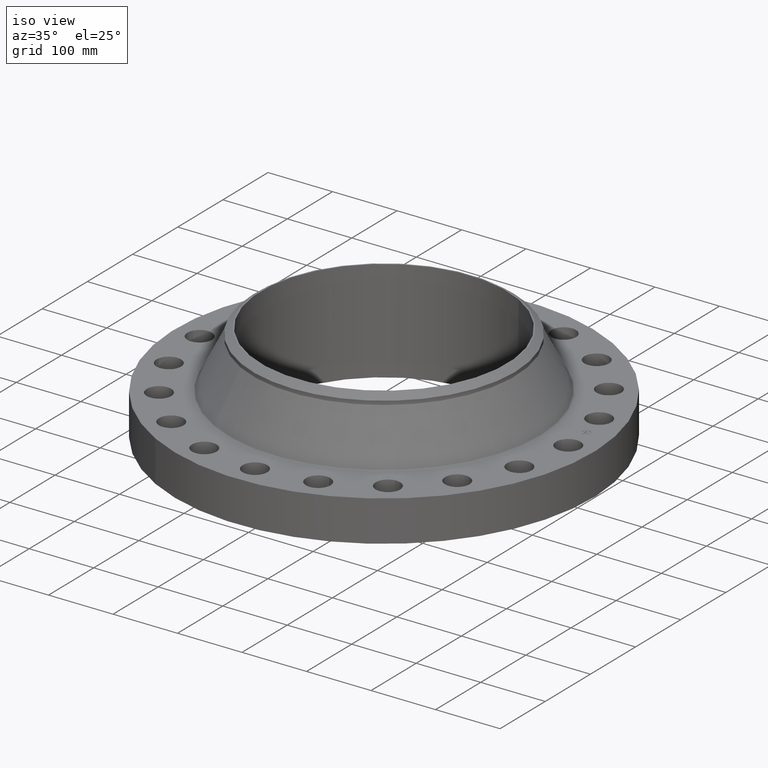
[diagram: clean part render]
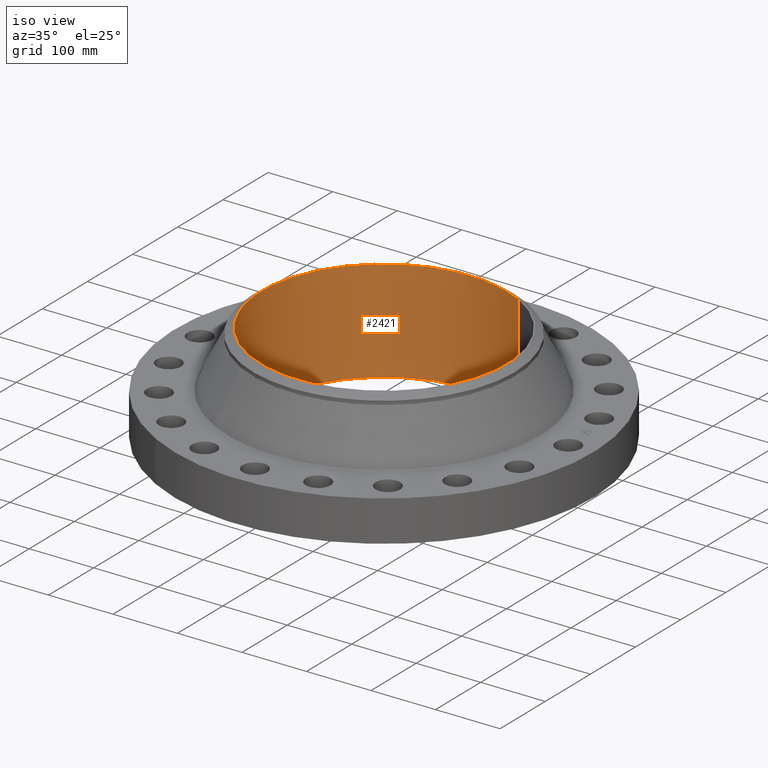
[diagram: tour spotlight — one face highlighted and labeled with its STEP entity id]
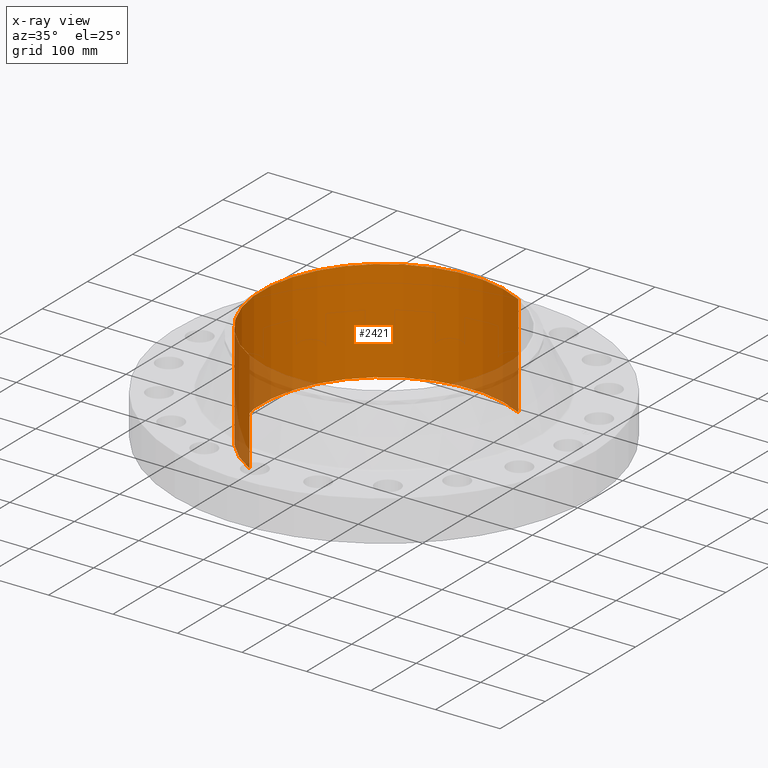
[diagram: x-ray of the same camera — body ghosted, this tour face saturated]
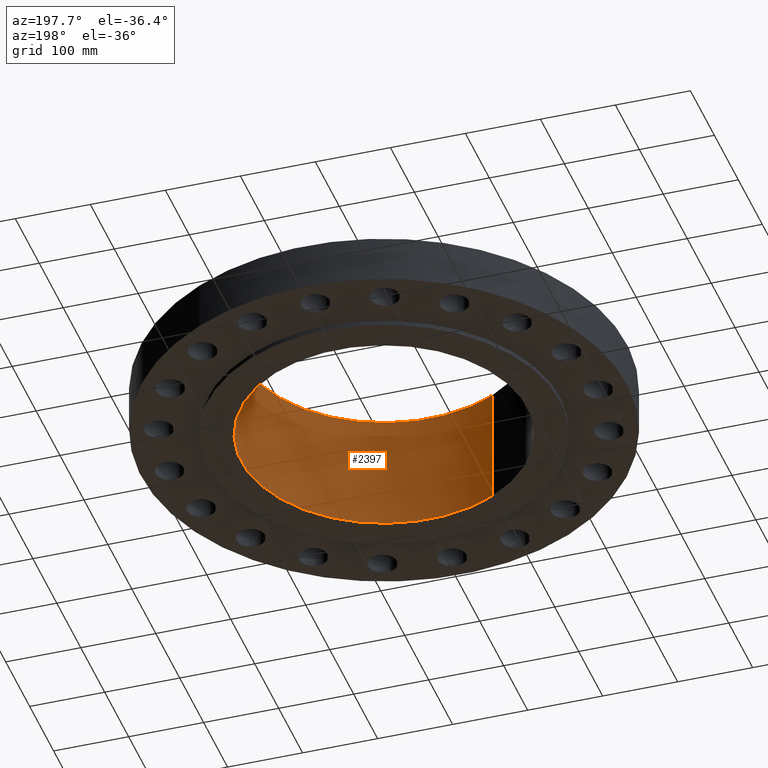
[diagram: tour spotlight — one face highlighted and labeled with its STEP entity id]
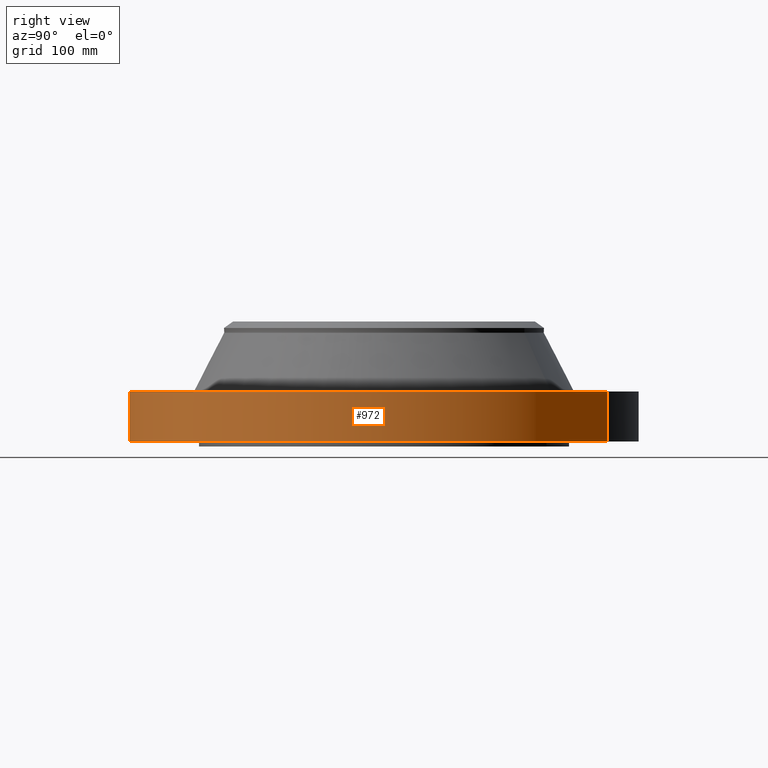
[diagram: tour spotlight — one face highlighted and labeled with its STEP entity id]
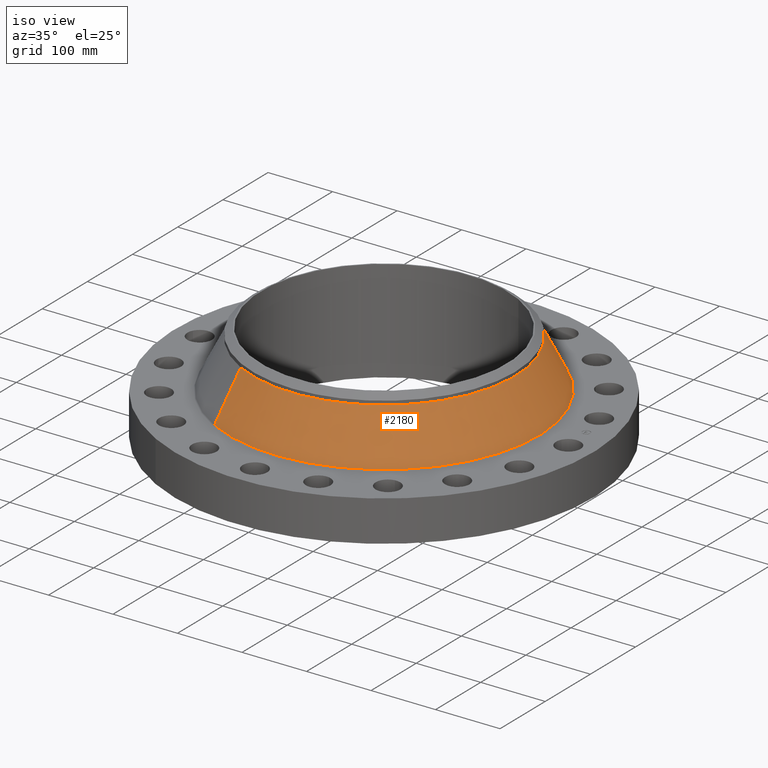
[diagram: tour spotlight — one face highlighted and labeled with its STEP entity id]
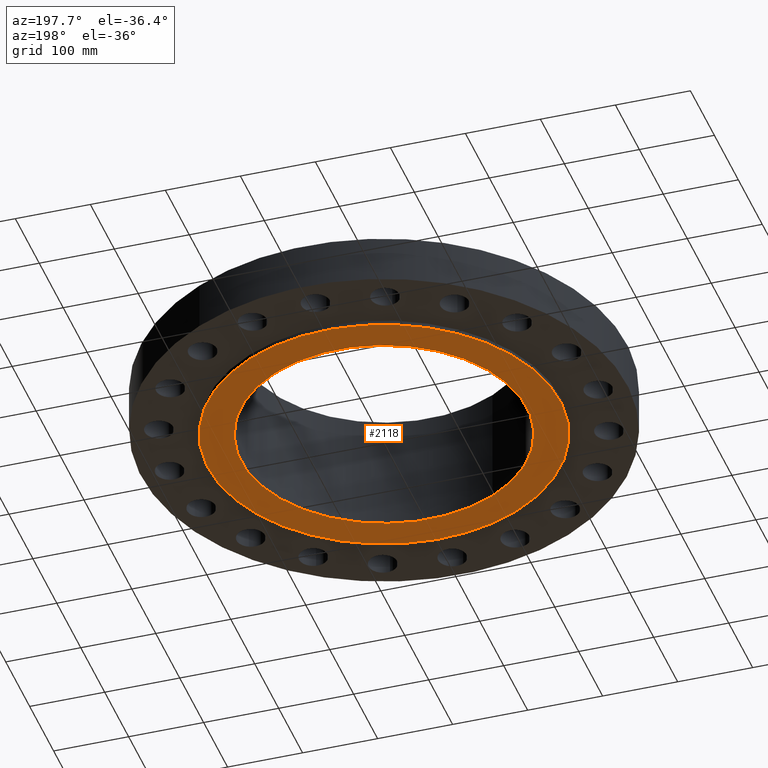
[diagram: tour spotlight — one face highlighted and labeled with its STEP entity id]
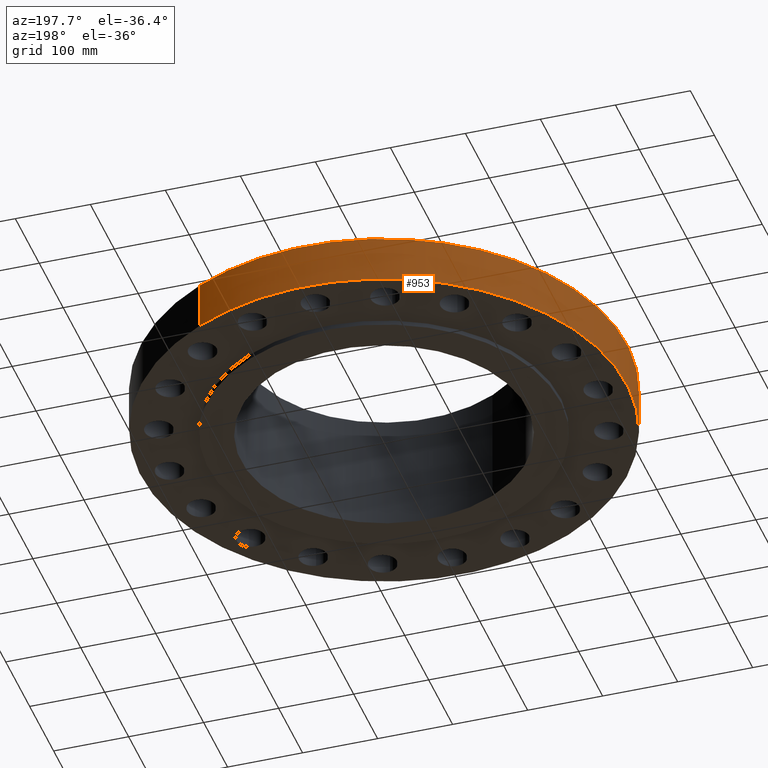
[diagram: tour spotlight — one face highlighted and labeled with its STEP entity id]
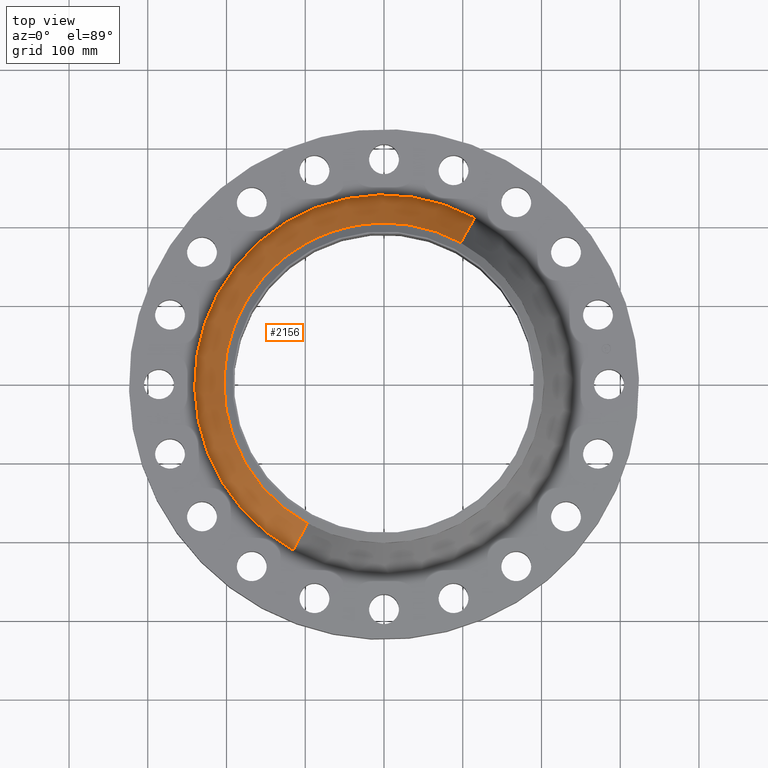
[diagram: tour spotlight — one face highlighted and labeled with its STEP entity id]
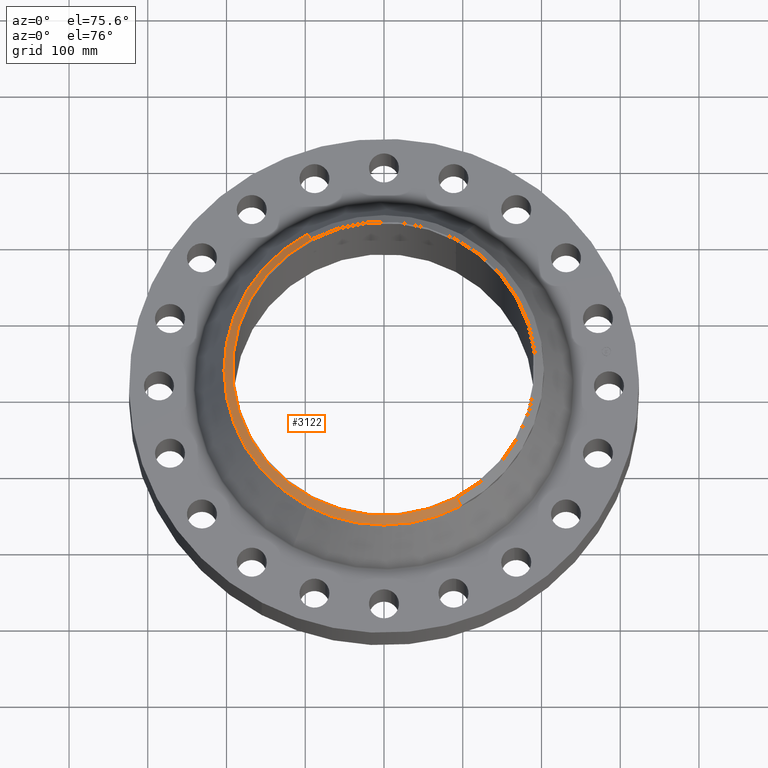
[diagram: tour spotlight — one face highlighted and labeled with its STEP entity id]
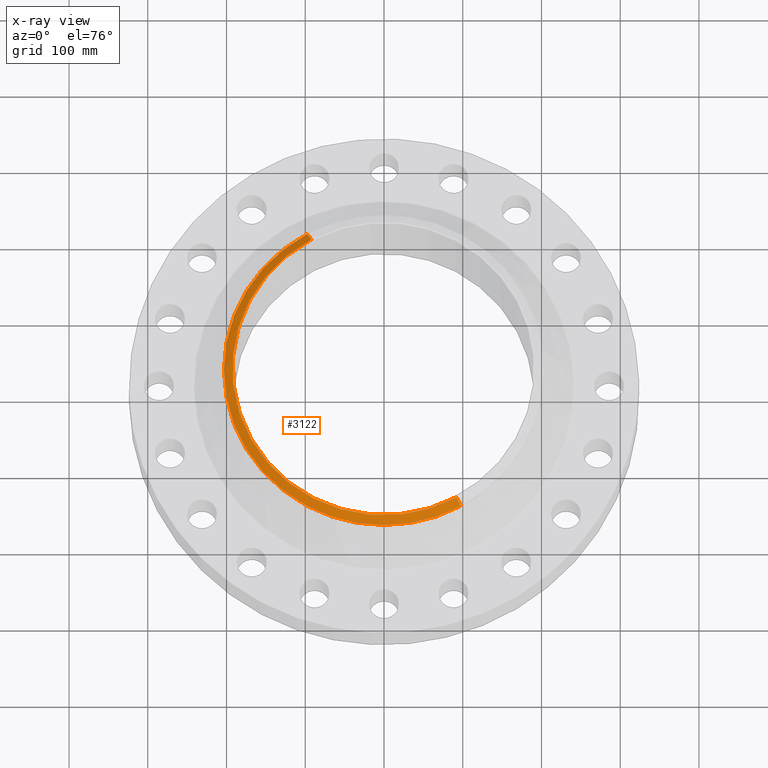
[diagram: x-ray of the same camera — body ghosted, this tour face saturated]
A machine part: a face-by-face anatomy tour. The part has 443 B-rep faces; the first image is the clean iso view, then the 8 largest visible faces are spotlighted one at a time (largest first), each with its STEP entity span.

Face 1 — iso view, entity #2421. An x-ray twin of the same camera follows (body ghosted, this face saturated) — the face is partly hidden behind the body. In plain terms, the highlighted cylindrical surface (partial cylindrical patch) has radius 190.5 mm, axis along (-0, 0, -1).
Definition (entity closure, byte-faithful):
#2111=AXIS2_PLACEMENT_3D('Circle Axis2P3D',#2109,#2110,$) ;
#2408=AXIS2_PLACEMENT_3D('Cylinder Axis2P3D',#2405,#2406,#2407) ;
#2412=AXIS2_PLACEMENT_3D('Circle Axis2P3D',#2410,#2411,$) ;
#2104=CARTESIAN_POINT('Vertex',(3.59569153955,6.5818692142,-0.24999999999)) ;
#2106=CARTESIAN_POINT('Vertex',(-3.59569153955,-6.5818692142,-0.24999999999)) ;
#2109=CARTESIAN_POINT('Axis2P3D Location',(1.28121485424E-011,-1.36647998254E-011,-0.250000000001)) ;
#2376=CARTESIAN_POINT('Vertex',(3.59569153955,6.5818692142,6.00000000001)) ;
#2378=CARTESIAN_POINT('Vertex',(-3.59569153955,-6.5818692142,6.00000000001)) ;
#2381=CARTESIAN_POINT('Line Origine',(3.59569153955,6.5818692142,2.87500000001)) ;
#2386=CARTESIAN_POINT('Line Origine',(-3.59569153955,-6.5818692142,2.87500000001)) ;
#2405=CARTESIAN_POINT('Axis2P3D Location',(0.,0.,2.87500000001)) ;
#2410=CARTESIAN_POINT('Axis2P3D Location',(0.,0.,6.00000000001)) ;
#2110=DIRECTION('Axis2P3D Direction',(0.,0.,-0.0393700787402)) ;
#2382=DIRECTION('Vector Direction',(0.,0.,-0.0393700787402)) ;
#2387=DIRECTION('Vector Direction',(0.,0.,-0.0393700787402)) ;
#2406=DIRECTION('Axis2P3D Direction',(-0.,0.,-0.0393700787402)) ;
#2407=DIRECTION('Axis2P3D XDirection',(-0.0188750212049,-0.0345504945626,0.)) ;
#2411=DIRECTION('Axis2P3D Direction',(-0.,0.,-0.0393700787402)) ;
#2383=VECTOR('Line Direction',#2382,0.0393700787402) ;
#2388=VECTOR('Line Direction',#2387,0.0393700787402) ;
#2416=ORIENTED_EDGE('',*,*,#2414,.F.) ;
#2417=ORIENTED_EDGE('',*,*,#2390,.T.) ;
#2418=ORIENTED_EDGE('',*,*,#2113,.T.) ;
#2419=ORIENTED_EDGE('',*,*,#2385,.F.) ;
#2421=ADVANCED_FACE('PartBody',(#2420),#2409,.F.) ;
#2112=CIRCLE('generated circle',#2111,7.50000000003) ;
#2413=CIRCLE('generated circle',#2412,7.50000000003) ;
#2409=CYLINDRICAL_SURFACE('generated cylinder',#2408,7.50000000003) ;
#2113=EDGE_CURVE('',#2107,#2105,#2112,.T.) ;
#2385=EDGE_CURVE('',#2377,#2105,#2384,.T.) ;
#2390=EDGE_CURVE('',#2379,#2107,#2389,.T.) ;
#2414=EDGE_CURVE('',#2379,#2377,#2413,.T.) ;
#2415=EDGE_LOOP('',(#2416,#2417,#2418,#2419)) ;
#2420=FACE_OUTER_BOUND('',#2415,.T.) ;
#2384=LINE('Line',#2381,#2383) ;
#2389=LINE('Line',#2386,#2388) ;
#2105=VERTEX_POINT('',#2104) ;
#2107=VERTEX_POINT('',#2106) ;
#2377=VERTEX_POINT('',#2376) ;
#2379=VERTEX_POINT('',#2378) ;

Face 2 — auxiliary view, entity #2397. In plain terms, the highlighted cylindrical surface (partial cylindrical patch) has radius 190.5 mm, axis along (-0, 0, -1).
Definition (entity closure, byte-faithful):
#2102=AXIS2_PLACEMENT_3D('Circle Axis2P3D',#2100,#2101,$) ;
#2370=AXIS2_PLACEMENT_3D('Cylinder Axis2P3D',#2367,#2368,#2369) ;
#2374=AXIS2_PLACEMENT_3D('Circle Axis2P3D',#2372,#2373,$) ;
#2100=CARTESIAN_POINT('Axis2P3D Location',(-1.28121485424E-011,3.33451551585E-013,-0.250000000001)) ;
#2104=CARTESIAN_POINT('Vertex',(3.59569153955,6.5818692142,-0.24999999999)) ;
#2106=CARTESIAN_POINT('Vertex',(-3.59569153955,-6.5818692142,-0.24999999999)) ;
#2367=CARTESIAN_POINT('Axis2P3D Location',(0.,0.,2.87500000001)) ;
#2372=CARTESIAN_POINT('Axis2P3D Location',(0.,0.,6.00000000001)) ;
#2376=CARTESIAN_POINT('Vertex',(3.59569153955,6.5818692142,6.00000000001)) ;
#2378=CARTESIAN_POINT('Vertex',(-3.59569153955,-6.5818692142,6.00000000001)) ;
#2381=CARTESIAN_POINT('Line Origine',(3.59569153955,6.5818692142,2.87500000001)) ;
#2386=CARTESIAN_POINT('Line Origine',(-3.59569153955,-6.5818692142,2.87500000001)) ;
#2101=DIRECTION('Axis2P3D Direction',(0.,0.,-0.0393700787402)) ;
#2368=DIRECTION('Axis2P3D Direction',(-0.,0.,-0.0393700787402)) ;
#2369=DIRECTION('Axis2P3D XDirection',(0.0188750212049,0.0345504945626,0.)) ;
#2373=DIRECTION('Axis2P3D Direction',(-0.,0.,-0.0393700787402)) ;
#2382=DIRECTION('Vector Direction',(0.,0.,-0.0393700787402)) ;
#2387=DIRECTION('Vector Direction',(0.,0.,-0.0393700787402)) ;
#2383=VECTOR('Line Direction',#2382,0.0393700787402) ;
#2388=VECTOR('Line Direction',#2387,0.0393700787402) ;
#2392=ORIENTED_EDGE('',*,*,#2380,.F.) ;
#2393=ORIENTED_EDGE('',*,*,#2385,.T.) ;
#2394=ORIENTED_EDGE('',*,*,#2108,.T.) ;
#2395=ORIENTED_EDGE('',*,*,#2390,.F.) ;
#2397=ADVANCED_FACE('PartBody',(#2396),#2371,.F.) ;
#2103=CIRCLE('generated circle',#2102,7.50000000003) ;
#2375=CIRCLE('generated circle',#2374,7.50000000003) ;
#2371=CYLINDRICAL_SURFACE('generated cylinder',#2370,7.50000000003) ;
#2108=EDGE_CURVE('',#2105,#2107,#2103,.T.) ;
#2380=EDGE_CURVE('',#2377,#2379,#2375,.T.) ;
#2385=EDGE_CURVE('',#2377,#2105,#2384,.T.) ;
#2390=EDGE_CURVE('',#2379,#2107,#2389,.T.) ;
#2391=EDGE_LOOP('',(#2392,#2393,#2394,#2395)) ;
#2396=FACE_OUTER_BOUND('',#2391,.T.) ;
#2384=LINE('Line',#2381,#2383) ;
#2389=LINE('Line',#2386,#2388) ;
#2105=VERTEX_POINT('',#2104) ;
#2107=VERTEX_POINT('',#2106) ;
#2377=VERTEX_POINT('',#2376) ;
#2379=VERTEX_POINT('',#2378) ;

Face 3 — right view, entity #972. In plain terms, the highlighted cylindrical surface (partial cylindrical patch) has radius 323.85 mm, axis along (0, 0, -1).
Definition (entity closure, byte-faithful):
#140=AXIS2_PLACEMENT_3D('Circle Axis2P3D',#138,#139,$) ;
#526=AXIS2_PLACEMENT_3D('Circle Axis2P3D',#524,#525,$) ;
#964=AXIS2_PLACEMENT_3D('Cylinder Axis2P3D',#961,#962,#963) ;
#133=CARTESIAN_POINT('Vertex',(-6.11267561727,-11.1891776642,-4.66720275725E-012)) ;
#135=CARTESIAN_POINT('Vertex',(6.11267561726,11.1891776642,-4.66720275725E-012)) ;
#138=CARTESIAN_POINT('Axis2P3D Location',(-1.1189649382E-015,-3.99918068914E-012,0.)) ;
#524=CARTESIAN_POINT('Axis2P3D Location',(-1.28099106126E-011,1.16685663756E-011,2.50000000001)) ;
#528=CARTESIAN_POINT('Vertex',(6.11267561726,11.1891776642,2.5)) ;
#530=CARTESIAN_POINT('Vertex',(-6.11267561726,-11.1891776642,2.5)) ;
#937=CARTESIAN_POINT('Line Origine',(-6.11267561726,-11.1891776642,1.25)) ;
#942=CARTESIAN_POINT('Line Origine',(6.11267561726,11.1891776642,1.25)) ;
#961=CARTESIAN_POINT('Axis2P3D Location',(0.,0.,2.87500000001)) ;
#139=DIRECTION('Axis2P3D Direction',(0.,0.,-0.0393700787402)) ;
#525=DIRECTION('Axis2P3D Direction',(0.,0.,-0.0393700787402)) ;
#938=DIRECTION('Vector Direction',(0.,0.,-0.0393700787402)) ;
#943=DIRECTION('Vector Direction',(0.,0.,-0.0393700787402)) ;
#962=DIRECTION('Axis2P3D Direction',(0.,0.,-0.0393700787402)) ;
#963=DIRECTION('Axis2P3D XDirection',(0.0188750212049,0.0345504945626,0.)) ;
#939=VECTOR('Line Direction',#938,0.0393700787402) ;
#944=VECTOR('Line Direction',#943,0.0393700787402) ;
#967=ORIENTED_EDGE('',*,*,#142,.F.) ;
#968=ORIENTED_EDGE('',*,*,#946,.T.) ;
#969=ORIENTED_EDGE('',*,*,#532,.T.) ;
#970=ORIENTED_EDGE('',*,*,#941,.F.) ;
#972=ADVANCED_FACE('PartBody',(#971),#965,.T.) ;
#141=CIRCLE('generated circle',#140,12.7500000001) ;
#527=CIRCLE('generated circle',#526,12.7500000001) ;
#965=CYLINDRICAL_SURFACE('generated cylinder',#964,12.7500000001) ;
#142=EDGE_CURVE('',#136,#134,#141,.T.) ;
#532=EDGE_CURVE('',#529,#531,#527,.T.) ;
#941=EDGE_CURVE('',#134,#531,#940,.F.) ;
#946=EDGE_CURVE('',#136,#529,#945,.F.) ;
#966=EDGE_LOOP('',(#967,#968,#969,#970)) ;
#971=FACE_OUTER_BOUND('',#966,.T.) ;
#940=LINE('Line',#937,#939) ;
#945=LINE('Line',#942,#944) ;
#134=VERTEX_POINT('',#133) ;
#136=VERTEX_POINT('',#135) ;
#529=VERTEX_POINT('',#528) ;
#531=VERTEX_POINT('',#530) ;

Face 4 — iso view, entity #2180. In plain terms, the highlighted conical surface has half-angle 27.027 deg.
Definition (entity closure, byte-faithful):
#1999=AXIS2_PLACEMENT_3D('Circle Axis2P3D',#1997,#1998,$) ;
#2167=AXIS2_PLACEMENT_3D('Cone Axis2P3D',#2164,#2165,#2166) ;
#2171=AXIS2_PLACEMENT_3D('Circle Axis2P3D',#2169,#2170,$) ;
#1963=CARTESIAN_POINT('Vertex',(-4.53853090036,-8.30772508771,2.56547143949)) ;
#1970=CARTESIAN_POINT('Vertex',(4.53853090036,8.30772508771,2.56547143949)) ;
#1997=CARTESIAN_POINT('Axis2P3D Location',(0.,0.,2.56547143949)) ;
#2131=CARTESIAN_POINT('Line Origine',(-4.1869676046,-7.66419279143,4.00300346047)) ;
#2135=CARTESIAN_POINT('Vertex',(-3.83540430885,-7.02066049515,5.44053548146)) ;
#2142=CARTESIAN_POINT('Vertex',(3.83540430885,7.02066049515,5.44053548146)) ;
#2145=CARTESIAN_POINT('Line Origine',(4.1869676046,7.66419279143,4.00300346047)) ;
#2164=CARTESIAN_POINT('Axis2P3D Location',(0.,0.,5.44053548146)) ;
#2169=CARTESIAN_POINT('Axis2P3D Location',(0.,0.,5.44053548146)) ;
#1998=DIRECTION('Axis2P3D Direction',(-0.,0.,-0.0393700787402)) ;
#2132=DIRECTION('Vector Direction',(-0.00857689780153,-0.0156999061161,-0.0350706839405)) ;
#2146=DIRECTION('Vector Direction',(0.00857689780153,0.0156999061161,-0.0350706839405)) ;
#2165=DIRECTION('Axis2P3D Direction',(0.,0.,-0.0393700787402)) ;
#2166=DIRECTION('Axis2P3D XDirection',(0.0188750212049,0.0345504945626,0.)) ;
#2170=DIRECTION('Axis2P3D Direction',(-0.,0.,-0.0393700787402)) ;
#2133=VECTOR('Line Direction',#2132,0.0393700787402) ;
#2147=VECTOR('Line Direction',#2146,0.0393700787402) ;
#2175=ORIENTED_EDGE('',*,*,#2001,.F.) ;
#2176=ORIENTED_EDGE('',*,*,#2149,.T.) ;
#2177=ORIENTED_EDGE('',*,*,#2173,.T.) ;
#2178=ORIENTED_EDGE('',*,*,#2137,.F.) ;
#2180=ADVANCED_FACE('PartBody',(#2179),#2168,.T.) ;
#2000=CIRCLE('generated circle',#1999,9.46660228733) ;
#2172=CIRCLE('generated circle',#2171,8.00000000003) ;
#2168=CONICAL_SURFACE('Cone',#2167,8.00000000003,0.471703788435) ;
#2001=EDGE_CURVE('',#1971,#1964,#2000,.T.) ;
#2137=EDGE_CURVE('',#1964,#2136,#2134,.F.) ;
#2149=EDGE_CURVE('',#1971,#2143,#2148,.F.) ;
#2173=EDGE_CURVE('',#2143,#2136,#2172,.T.) ;
#2174=EDGE_LOOP('',(#2175,#2176,#2177,#2178)) ;
#2179=FACE_OUTER_BOUND('',#2174,.T.) ;
#2134=LINE('Line',#2131,#2133) ;
#2148=LINE('Line',#2145,#2147) ;
#1964=VERTEX_POINT('',#1963) ;
#1971=VERTEX_POINT('',#1970) ;
#2136=VERTEX_POINT('',#2135) ;
#2143=VERTEX_POINT('',#2142) ;

Face 5 — auxiliary view, entity #2118. In plain terms, the highlighted planar face has unit normal (0, 0, -1).
Definition (entity closure, byte-faithful):
#987=AXIS2_PLACEMENT_3D('Circle Axis2P3D',#985,#986,$) ;
#1025=AXIS2_PLACEMENT_3D('Circle Axis2P3D',#1023,#1024,$) ;
#2094=AXIS2_PLACEMENT_3D('Plane Axis2P3D',#2091,#2092,#2093) ;
#2102=AXIS2_PLACEMENT_3D('Circle Axis2P3D',#2100,#2101,$) ;
#2111=AXIS2_PLACEMENT_3D('Circle Axis2P3D',#2109,#2110,$) ;
#985=CARTESIAN_POINT('Axis2P3D Location',(0.,0.,-0.24999999999)) ;
#989=CARTESIAN_POINT('Vertex',(4.43468623208,8.11763869756,-0.250000000001)) ;
#991=CARTESIAN_POINT('Vertex',(-4.43468623208,-8.1176386975,-0.250000000001)) ;
#1023=CARTESIAN_POINT('Axis2P3D Location',(0.,0.,-0.250000000001)) ;
#2091=CARTESIAN_POINT('Axis2P3D Location',(0.,7.50000000003,-0.250000000001)) ;
#2100=CARTESIAN_POINT('Axis2P3D Location',(-1.28121485424E-011,3.33451551585E-013,-0.250000000001)) ;
#2104=CARTESIAN_POINT('Vertex',(3.59569153955,6.5818692142,-0.24999999999)) ;
#2106=CARTESIAN_POINT('Vertex',(-3.59569153955,-6.5818692142,-0.24999999999)) ;
#2109=CARTESIAN_POINT('Axis2P3D Location',(1.28121485424E-011,-1.36647998254E-011,-0.250000000001)) ;
#986=DIRECTION('Axis2P3D Direction',(0.,0.,-0.0393700787402)) ;
#1024=DIRECTION('Axis2P3D Direction',(0.,0.,-0.0393700787402)) ;
#2092=DIRECTION('Axis2P3D Direction',(0.,0.,-0.0393700787402)) ;
#2093=DIRECTION('Axis2P3D XDirection',(0.0393700787402,0.,0.)) ;
#2101=DIRECTION('Axis2P3D Direction',(0.,0.,-0.0393700787402)) ;
#2110=DIRECTION('Axis2P3D Direction',(0.,0.,-0.0393700787402)) ;
#2097=ORIENTED_EDGE('',*,*,#1027,.T.) ;
#2098=ORIENTED_EDGE('',*,*,#993,.T.) ;
#2115=ORIENTED_EDGE('',*,*,#2108,.F.) ;
#2116=ORIENTED_EDGE('',*,*,#2113,.F.) ;
#2117=FACE_BOUND('',#2114,.T.) ;
#2118=ADVANCED_FACE('PartBody',(#2099,#2117),#2095,.T.) ;
#988=CIRCLE('generated circle',#987,9.25000000004) ;
#1026=CIRCLE('generated circle',#1025,9.25000000004) ;
#2103=CIRCLE('generated circle',#2102,7.50000000003) ;
#2112=CIRCLE('generated circle',#2111,7.50000000003) ;
#993=EDGE_CURVE('',#990,#992,#988,.T.) ;
#1027=EDGE_CURVE('',#992,#990,#1026,.T.) ;
#2108=EDGE_CURVE('',#2105,#2107,#2103,.T.) ;
#2113=EDGE_CURVE('',#2107,#2105,#2112,.T.) ;
#2096=EDGE_LOOP('',(#2097,#2098)) ;
#2114=EDGE_LOOP('',(#2115,#2116)) ;
#2099=FACE_OUTER_BOUND('',#2096,.T.) ;
#2095=PLANE('',#2094) ;
#990=VERTEX_POINT('',#989) ;
#992=VERTEX_POINT('',#991) ;
#2105=VERTEX_POINT('',#2104) ;
#2107=VERTEX_POINT('',#2106) ;

Face 6 — auxiliary view, entity #953. In plain terms, the highlighted cylindrical surface (partial cylindrical patch) has radius 323.85 mm, axis along (0, 0, -1).
Definition (entity closure, byte-faithful):
#131=AXIS2_PLACEMENT_3D('Circle Axis2P3D',#129,#130,$) ;
#535=AXIS2_PLACEMENT_3D('Circle Axis2P3D',#533,#534,$) ;
#935=AXIS2_PLACEMENT_3D('Cylinder Axis2P3D',#932,#933,#934) ;
#129=CARTESIAN_POINT('Axis2P3D Location',(-3.0855458171E-011,1.2855788175E-011,0.)) ;
#133=CARTESIAN_POINT('Vertex',(-6.11267561727,-11.1891776642,-4.66720275725E-012)) ;
#135=CARTESIAN_POINT('Vertex',(6.11267561726,11.1891776642,-4.66720275725E-012)) ;
#528=CARTESIAN_POINT('Vertex',(6.11267561726,11.1891776642,2.5)) ;
#530=CARTESIAN_POINT('Vertex',(-6.11267561726,-11.1891776642,2.5)) ;
#533=CARTESIAN_POINT('Axis2P3D Location',(1.28099106126E-011,-2.33192293122E-012,2.50000000001)) ;
#932=CARTESIAN_POINT('Axis2P3D Location',(0.,0.,2.87500000001)) ;
#937=CARTESIAN_POINT('Line Origine',(-6.11267561726,-11.1891776642,1.25)) ;
#942=CARTESIAN_POINT('Line Origine',(6.11267561726,11.1891776642,1.25)) ;
#130=DIRECTION('Axis2P3D Direction',(0.,0.,-0.0393700787402)) ;
#534=DIRECTION('Axis2P3D Direction',(0.,0.,-0.0393700787402)) ;
#933=DIRECTION('Axis2P3D Direction',(0.,0.,-0.0393700787402)) ;
#934=DIRECTION('Axis2P3D XDirection',(-0.0188750212049,-0.0345504945626,0.)) ;
#938=DIRECTION('Vector Direction',(0.,0.,-0.0393700787402)) ;
#943=DIRECTION('Vector Direction',(0.,0.,-0.0393700787402)) ;
#939=VECTOR('Line Direction',#938,0.0393700787402) ;
#944=VECTOR('Line Direction',#943,0.0393700787402) ;
#948=ORIENTED_EDGE('',*,*,#137,.F.) ;
#949=ORIENTED_EDGE('',*,*,#941,.T.) ;
#950=ORIENTED_EDGE('',*,*,#537,.T.) ;
#951=ORIENTED_EDGE('',*,*,#946,.F.) ;
#953=ADVANCED_FACE('PartBody',(#952),#936,.T.) ;
#132=CIRCLE('generated circle',#131,12.7500000001) ;
#536=CIRCLE('generated circle',#535,12.7500000001) ;
#936=CYLINDRICAL_SURFACE('generated cylinder',#935,12.7500000001) ;
#137=EDGE_CURVE('',#134,#136,#132,.T.) ;
#537=EDGE_CURVE('',#531,#529,#536,.T.) ;
#941=EDGE_CURVE('',#134,#531,#940,.F.) ;
#946=EDGE_CURVE('',#136,#529,#945,.F.) ;
#947=EDGE_LOOP('',(#948,#949,#950,#951)) ;
#952=FACE_OUTER_BOUND('',#947,.T.) ;
#940=LINE('Line',#937,#939) ;
#945=LINE('Line',#942,#944) ;
#134=VERTEX_POINT('',#133) ;
#136=VERTEX_POINT('',#135) ;
#529=VERTEX_POINT('',#528) ;
#531=VERTEX_POINT('',#530) ;

Face 7 — top view, entity #2156. In plain terms, the highlighted conical surface has half-angle 27.027 deg.
Definition (entity closure, byte-faithful):
#1968=AXIS2_PLACEMENT_3D('Circle Axis2P3D',#1966,#1967,$) ;
#2129=AXIS2_PLACEMENT_3D('Cone Axis2P3D',#2126,#2127,#2128) ;
#2140=AXIS2_PLACEMENT_3D('Circle Axis2P3D',#2138,#2139,$) ;
#1963=CARTESIAN_POINT('Vertex',(-4.53853090036,-8.30772508771,2.56547143949)) ;
#1966=CARTESIAN_POINT('Axis2P3D Location',(0.,0.,2.56547143949)) ;
#1970=CARTESIAN_POINT('Vertex',(4.53853090036,8.30772508771,2.56547143949)) ;
#2126=CARTESIAN_POINT('Axis2P3D Location',(0.,0.,5.44053548146)) ;
#2131=CARTESIAN_POINT('Line Origine',(-4.1869676046,-7.66419279143,4.00300346047)) ;
#2135=CARTESIAN_POINT('Vertex',(-3.83540430885,-7.02066049515,5.44053548146)) ;
#2138=CARTESIAN_POINT('Axis2P3D Location',(0.,0.,5.44053548146)) ;
#2142=CARTESIAN_POINT('Vertex',(3.83540430885,7.02066049515,5.44053548146)) ;
#2145=CARTESIAN_POINT('Line Origine',(4.1869676046,7.66419279143,4.00300346047)) ;
#1967=DIRECTION('Axis2P3D Direction',(-0.,0.,-0.0393700787402)) ;
#2127=DIRECTION('Axis2P3D Direction',(0.,0.,-0.0393700787402)) ;
#2128=DIRECTION('Axis2P3D XDirection',(-0.0188750212049,-0.0345504945626,0.)) ;
#2132=DIRECTION('Vector Direction',(-0.00857689780153,-0.0156999061161,-0.0350706839405)) ;
#2139=DIRECTION('Axis2P3D Direction',(-0.,0.,-0.0393700787402)) ;
#2146=DIRECTION('Vector Direction',(0.00857689780153,0.0156999061161,-0.0350706839405)) ;
#2133=VECTOR('Line Direction',#2132,0.0393700787402) ;
#2147=VECTOR('Line Direction',#2146,0.0393700787402) ;
#2151=ORIENTED_EDGE('',*,*,#1972,.F.) ;
#2152=ORIENTED_EDGE('',*,*,#2137,.T.) ;
#2153=ORIENTED_EDGE('',*,*,#2144,.T.) ;
#2154=ORIENTED_EDGE('',*,*,#2149,.F.) ;
#2156=ADVANCED_FACE('PartBody',(#2155),#2130,.T.) ;
#1969=CIRCLE('generated circle',#1968,9.46660228733) ;
#2141=CIRCLE('generated circle',#2140,8.00000000003) ;
#2130=CONICAL_SURFACE('Cone',#2129,8.00000000003,0.471703788435) ;
#1972=EDGE_CURVE('',#1964,#1971,#1969,.T.) ;
#2137=EDGE_CURVE('',#1964,#2136,#2134,.F.) ;
#2144=EDGE_CURVE('',#2136,#2143,#2141,.T.) ;
#2149=EDGE_CURVE('',#1971,#2143,#2148,.F.) ;
#2150=EDGE_LOOP('',(#2151,#2152,#2153,#2154)) ;
#2155=FACE_OUTER_BOUND('',#2150,.T.) ;
#2134=LINE('Line',#2131,#2133) ;
#2148=LINE('Line',#2145,#2147) ;
#1964=VERTEX_POINT('',#1963) ;
#1971=VERTEX_POINT('',#1970) ;
#2136=VERTEX_POINT('',#2135) ;
#2143=VERTEX_POINT('',#2142) ;

Face 8 — auxiliary view, entity #3122. An x-ray twin of the same camera follows (body ghosted, this face saturated) — the face is partly hidden behind the body. In plain terms, the highlighted conical surface has half-angle 52.5 deg.
Definition (entity closure, byte-faithful):
#2450=AXIS2_PLACEMENT_3D('Circle Axis2P3D',#2448,#2449,$) ;
#2489=AXIS2_PLACEMENT_3D('Circle Axis2P3D',#2487,#2488,$) ;
#3081=AXIS2_PLACEMENT_3D('Circle Axis2P3D',#3079,#3080,$) ;
#3103=AXIS2_PLACEMENT_3D('Cone Axis2P3D',#3100,#3101,#3102) ;
#2445=CARTESIAN_POINT('Vertex',(-3.83540430885,-7.02066049515,5.67675595391)) ;
#2448=CARTESIAN_POINT('Axis2P3D Location',(0.,0.,5.67675595391)) ;
#2452=CARTESIAN_POINT('Vertex',(-3.83540430885,7.02066049515,5.67675595391)) ;
#2484=CARTESIAN_POINT('Vertex',(3.83540430885,-7.02066049515,5.67675595391)) ;
#2487=CARTESIAN_POINT('Axis2P3D Location',(0.,0.,5.67675595391)) ;
#3074=CARTESIAN_POINT('Vertex',(3.63344158196,-6.65097020333,6.00000000002)) ;
#3076=CARTESIAN_POINT('Vertex',(-3.63344158196,6.65097020333,6.00000000002)) ;
#3079=CARTESIAN_POINT('Axis2P3D Location',(8.39223703654E-016,-1.39960134471E-011,6.00000000002)) ;
#3100=CARTESIAN_POINT('Axis2P3D Location',(0.,0.,6.00000000002)) ;
#3105=CARTESIAN_POINT('Line Origine',(3.7344229454,-6.83581534923,5.83837797696)) ;
#3110=CARTESIAN_POINT('Line Origine',(-3.7344229454,6.83581534923,5.83837797696)) ;
#2449=DIRECTION('Axis2P3D Direction',(-0.,0.,-0.0393700787402)) ;
#2488=DIRECTION('Axis2P3D Direction',(-0.,0.,-0.0393700787402)) ;
#3080=DIRECTION('Axis2P3D Direction',(0.,0.,-0.0393700787402)) ;
#3101=DIRECTION('Axis2P3D Direction',(-0.,-0.,-0.0393700787402)) ;
#3102=DIRECTION('Axis2P3D XDirection',(0.0188750212049,-0.0345504945626,0.)) ;
#3106=DIRECTION('Vector Direction',(0.014974561121,-0.02741075027,-0.023966985394)) ;
#3111=DIRECTION('Vector Direction',(-0.014974561121,0.02741075027,-0.023966985394)) ;
#3107=VECTOR('Line Direction',#3106,0.0393700787402) ;
#3112=VECTOR('Line Direction',#3111,0.0393700787402) ;
#3116=ORIENTED_EDGE('',*,*,#3109,.F.) ;
#3117=ORIENTED_EDGE('',*,*,#3083,.F.) ;
#3118=ORIENTED_EDGE('',*,*,#3114,.T.) ;
#3119=ORIENTED_EDGE('',*,*,#2454,.T.) ;
#3120=ORIENTED_EDGE('',*,*,#2491,.F.) ;
#3122=ADVANCED_FACE('PartBody',(#3121),#3104,.T.) ;
#2451=CIRCLE('generated circle',#2450,8.00000000003) ;
#2490=CIRCLE('generated circle',#2489,8.00000000003) ;
#3082=CIRCLE('generated circle',#3081,7.57874015749) ;
#3104=CONICAL_SURFACE('Cone',#3103,7.57874015751,0.916297857297) ;
#2454=EDGE_CURVE('',#2453,#2446,#2451,.F.) ;
#2491=EDGE_CURVE('',#2485,#2446,#2490,.T.) ;
#3083=EDGE_CURVE('',#3077,#3075,#3082,.F.) ;
#3109=EDGE_CURVE('',#3075,#2485,#3108,.T.) ;
#3114=EDGE_CURVE('',#3077,#2453,#3113,.T.) ;
#3115=EDGE_LOOP('',(#3116,#3117,#3118,#3119,#3120)) ;
#3121=FACE_OUTER_BOUND('',#3115,.T.) ;
#3108=LINE('Line',#3105,#3107) ;
#3113=LINE('Line',#3110,#3112) ;
#2446=VERTEX_POINT('',#2445) ;
#2453=VERTEX_POINT('',#2452) ;
#2485=VERTEX_POINT('',#2484) ;
#3075=VERTEX_POINT('',#3074) ;
#3077=VERTEX_POINT('',#3076) ;